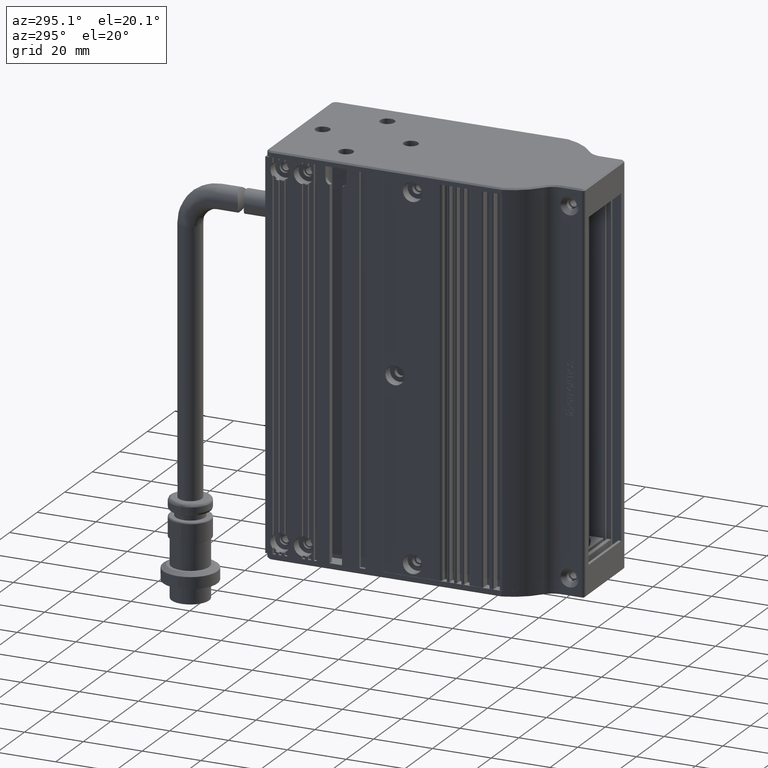
[diagram: clean part render]
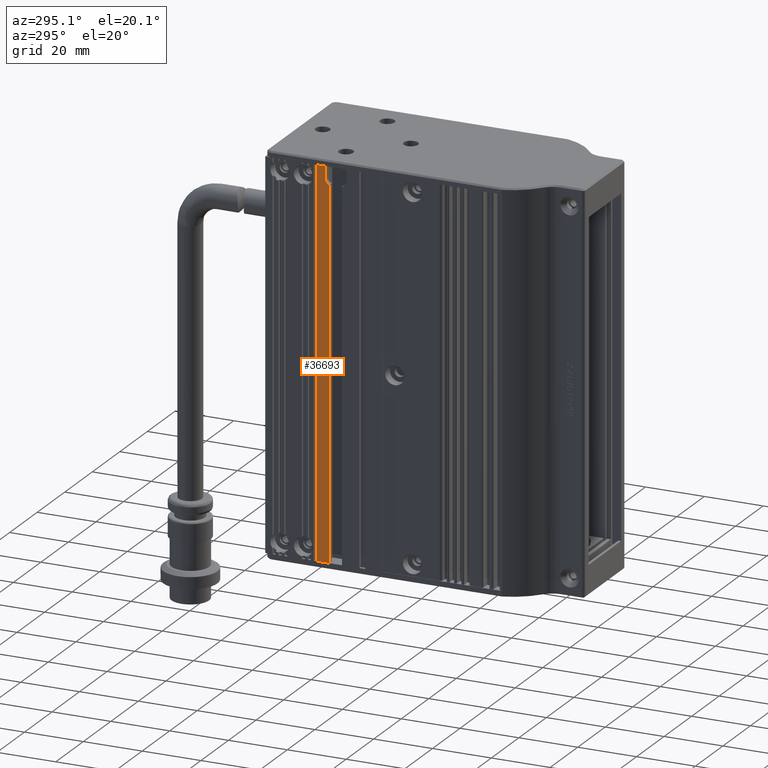
[diagram: same view with one face highlighted and labeled with its STEP entity id]
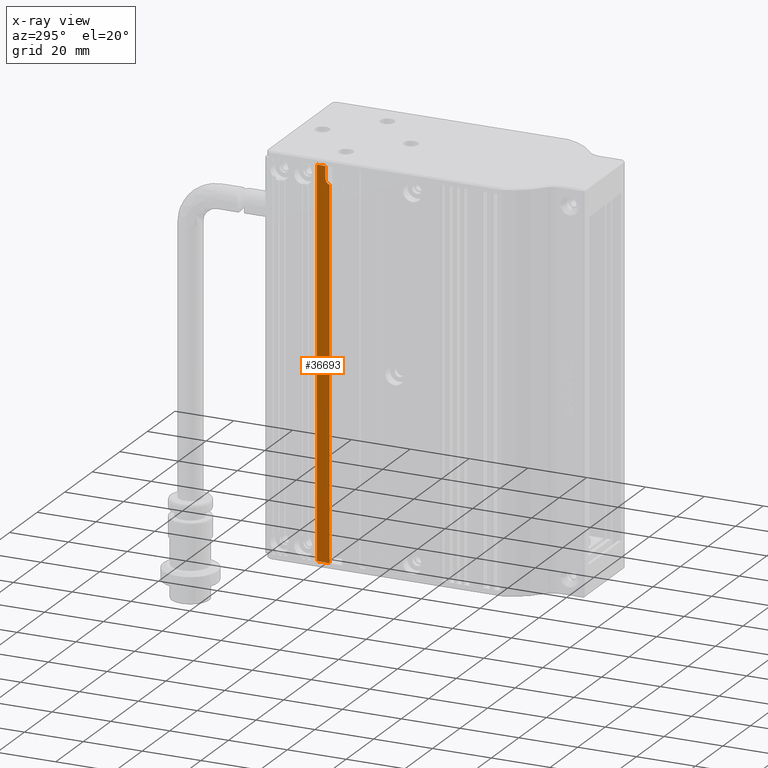
[diagram: x-ray of the same camera — body ghosted, the highlighted face saturated]
A machine part, auxiliary view. The second image highlights one B-rep face of the part: STEP entity #36693.
The next image is the same camera in x-ray: the body ghosted, the highlighted face saturated — about 0% of this face is hidden behind the body in this view.
In plain terms, the highlighted planar face has unit normal (1, 0, -0).
Its self-contained STEP definition (entity closure, byte-faithful):
#991 = VERTEX_POINT ( 'NONE', #65653 ) ;
#1383 = ORIENTED_EDGE ( 'NONE', *, *, #26690, .F. ) ;
#3445 = CARTESIAN_POINT ( 'NONE',  ( -62.06201180637545200, 23.55452420306966500, 65.00000000000000000 ) ) ;
#3918 = DIRECTION ( 'NONE',  ( 0.0000000000000000000, 1.734723475976805500E-015, -1.000000000000000000 ) ) ;
#5970 = VECTOR ( 'NONE', #71629, 1000.000000000000000 ) ;
#6656 = ORIENTED_EDGE ( 'NONE', *, *, #52918, .F. ) ;
#7018 = AXIS2_PLACEMENT_3D ( 'NONE', #50030, #16546, #60516 ) ;
#9855 = VECTOR ( 'NONE', #58711, 1000.000000000000000 ) ;
#12281 = CARTESIAN_POINT ( 'NONE',  ( -62.06201180637545200, 23.55452420306966500, 65.00000000000000000 ) ) ;
#13559 = CIRCLE ( 'NONE', #33744, 2.000000000000001800 ) ;
#14157 = LINE ( 'NONE', #66136, #37582 ) ;
#14931 = CARTESIAN_POINT ( 'NONE',  ( -62.06201180637545200, 26.50452420306967100, 65.00000000000000000 ) ) ;
#16546 = DIRECTION ( 'NONE',  ( 1.000000000000000000, 1.584222352490234300E-016, -0.0000000000000000000 ) ) ;
#16585 = VERTEX_POINT ( 'NONE', #19632 ) ;
#19366 = VERTEX_POINT ( 'NONE', #12281 ) ;
#19449 = DIRECTION ( 'NONE',  ( 0.0000000000000000000, -0.0000000000000000000, 1.000000000000000000 ) ) ;
#19632 = CARTESIAN_POINT ( 'NONE',  ( -62.06201180637545200, 23.55452420306966800, 61.00000000000000700 ) ) ;
#22541 = LINE ( 'NONE', #68665, #28575 ) ;
#24258 = EDGE_CURVE ( 'NONE', #42818, #19366, #31049, .T. ) ;
#25466 = VERTEX_POINT ( 'NONE', #26464 ) ;
#26464 = CARTESIAN_POINT ( 'NONE',  ( -62.06201180637545200, 26.50452420306967100, -65.00000000000000000 ) ) ;
#26690 = EDGE_CURVE ( 'NONE', #25466, #42818, #14157, .T. ) ;
#27245 = CARTESIAN_POINT ( 'NONE',  ( -62.06201180637545200, 22.10452420306966600, 59.07711154769706500 ) ) ;
#28575 = VECTOR ( 'NONE', #46789, 1000.000000000000000 ) ;
#30110 = ORIENTED_EDGE ( 'NONE', *, *, #24258, .F. ) ;
#31049 = LINE ( 'NONE', #32691, #5970 ) ;
#32691 = CARTESIAN_POINT ( 'NONE',  ( -62.06201180637545200, 2.004524203069662400, 65.00000000000000000 ) ) ;
#33744 = AXIS2_PLACEMENT_3D ( 'NONE', #69513, #47629, #3918 ) ;
#36693 = ADVANCED_FACE ( 'NONE', ( #36878 ), #49287, .F. ) ;
#36878 = FACE_OUTER_BOUND ( 'NONE', #71521, .T. ) ;
#37582 = VECTOR ( 'NONE', #38406, 1000.000000000000000 ) ;
#38406 = DIRECTION ( 'NONE',  ( 0.0000000000000000000, 0.0000000000000000000, 1.000000000000000000 ) ) ;
#42818 = VERTEX_POINT ( 'NONE', #14931 ) ;
#45477 = LINE ( 'NONE', #58984, #9855 ) ;
#46789 = DIRECTION ( 'NONE',  ( -0.0000000000000000000, -0.0000000000000000000, -1.000000000000000000 ) ) ;
#47553 = ORIENTED_EDGE ( 'NONE', *, *, #49813, .F. ) ;
#47629 = DIRECTION ( 'NONE',  ( -1.000000000000000000, -0.0000000000000000000, -0.0000000000000000000 ) ) ;
#48013 = ORIENTED_EDGE ( 'NONE', *, *, #49913, .T. ) ;
#49287 = PLANE ( 'NONE',  #7018 ) ;
#49813 = EDGE_CURVE ( 'NONE', #16585, #56773, #13559, .T. ) ;
#49913 = EDGE_CURVE ( 'NONE', #16585, #19366, #54396, .T. ) ;
#50030 = CARTESIAN_POINT ( 'NONE',  ( -62.06201180637544500, 2.004524203069658400, 65.00000000000000000 ) ) ;
#51271 = EDGE_CURVE ( 'NONE', #25466, #991, #45477, .T. ) ;
#52456 = ORIENTED_EDGE ( 'NONE', *, *, #51271, .T. ) ;
#52918 = EDGE_CURVE ( 'NONE', #56773, #991, #22541, .T. ) ;
#54396 = LINE ( 'NONE', #3445, #61413 ) ;
#56773 = VERTEX_POINT ( 'NONE', #27245 ) ;
#58711 = DIRECTION ( 'NONE',  ( 1.584222352490234300E-016, -1.000000000000000000, -0.0000000000000000000 ) ) ;
#58984 = CARTESIAN_POINT ( 'NONE',  ( -62.06201180637544500, 2.004524203069658400, -65.00000000000000000 ) ) ;
#60516 = DIRECTION ( 'NONE',  ( -1.584222352490234300E-016, 1.000000000000000000, 0.0000000000000000000 ) ) ;
#61413 = VECTOR ( 'NONE', #19449, 1000.000000000000000 ) ;
#65653 = CARTESIAN_POINT ( 'NONE',  ( -62.06201180637545200, 22.10452420306966600, -65.00000000000000000 ) ) ;
#66136 = CARTESIAN_POINT ( 'NONE',  ( -62.06201180637545200, 26.50452420306967100, 65.00000000000000000 ) ) ;
#68665 = CARTESIAN_POINT ( 'NONE',  ( -62.06201180637545200, 22.10452420306966600, 65.00000000000000000 ) ) ;
#69513 = CARTESIAN_POINT ( 'NONE',  ( -62.06201180637545200, 21.55452420306966800, 61.00000000000000700 ) ) ;
#71521 = EDGE_LOOP ( 'NONE', ( #30110, #1383, #52456, #6656, #47553, #48013 ) ) ;
#71629 = DIRECTION ( 'NONE',  ( -0.0000000000000000000, -1.000000000000000000, 0.0000000000000000000 ) ) ;